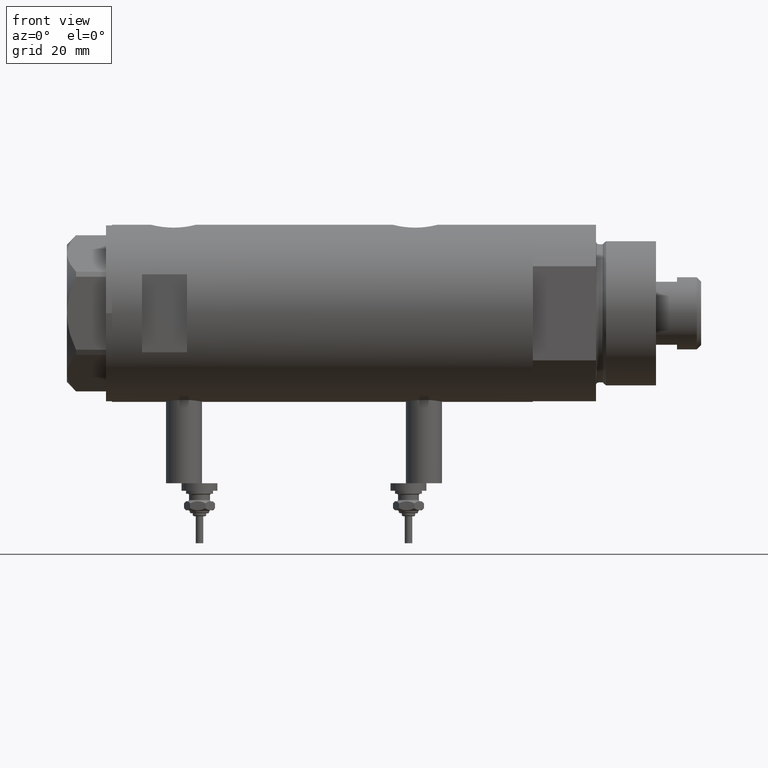
[diagram: clean part render]
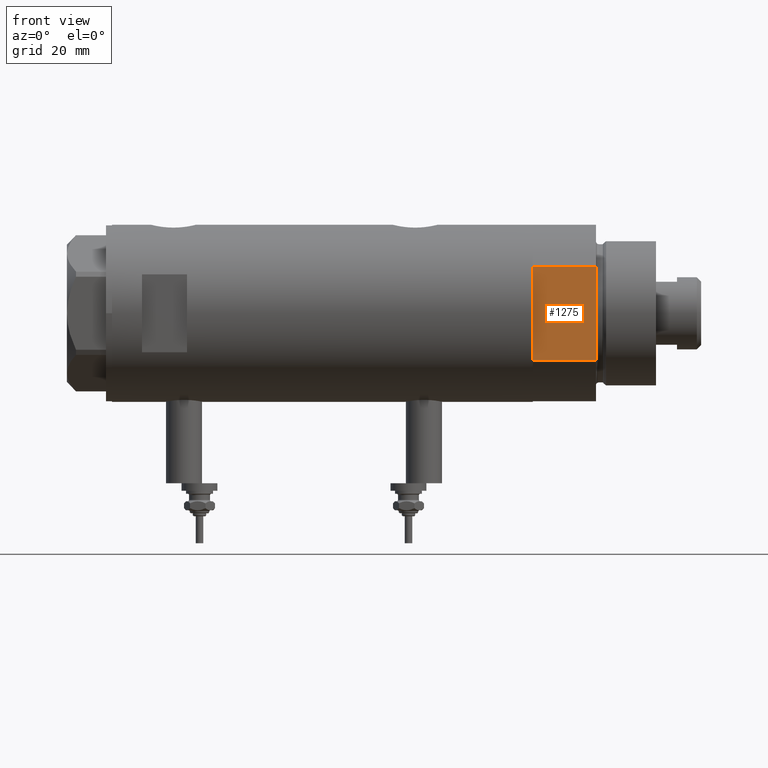
[diagram: same view with one face highlighted and labeled with its STEP entity id]
A machine part, front view. The second image highlights one B-rep face of the part: STEP entity #1275.
In plain terms, the highlighted planar face has unit normal (-0, 1, 0).
Its self-contained STEP definition (entity closure, byte-faithful):
#50 = ORIENTED_EDGE ( 'NONE', *, *, #5019, .F. ) ;
#114 = EDGE_CURVE ( 'NONE', #2147, #2326, #1627, .T. ) ;
#177 = EDGE_CURVE ( 'NONE', #2326, #1451, #5778, .T. ) ;
#266 = CARTESIAN_POINT ( 'NONE',  ( -15.66045976336583401, -25.00000000000000000, 0.000000000000000000 ) ) ;
#414 = VECTOR ( 'NONE', #4710, 1000.000000000000000 ) ;
#686 = ORIENTED_EDGE ( 'NONE', *, *, #689, .T. ) ;
#689 = EDGE_CURVE ( 'NONE', #3703, #2813, #1892, .T. ) ;
#770 = VECTOR ( 'NONE', #1471, 1000.000000000000000 ) ;
#849 = CARTESIAN_POINT ( 'NONE',  ( -15.66045976336583401, -25.00000000000000000, 21.00000000000000000 ) ) ;
#857 = VECTOR ( 'NONE', #1228, 1000.000000000000000 ) ;
#1077 = FACE_OUTER_BOUND ( 'NONE', #3263, .T. ) ;
#1108 = DIRECTION ( 'NONE',  ( -1.000000000000000000, -0.000000000000000000, -0.000000000000000000 ) ) ;
#1169 = CARTESIAN_POINT ( 'NONE',  ( 7.141428428542853091, -25.00000000000000000, 0.000000000000000000 ) ) ;
#1228 = DIRECTION ( 'NONE',  ( -1.000000000000000000, -0.000000000000000000, -0.000000000000000000 ) ) ;
#1275 = ADVANCED_FACE ( 'NONE', ( #1077 ), #1474, .F. ) ;
#1318 = VECTOR ( 'NONE', #1108, 1000.000000000000000 ) ;
#1331 = ORIENTED_EDGE ( 'NONE', *, *, #3384, .T. ) ;
#1440 = CARTESIAN_POINT ( 'NONE',  ( -15.66045976336583401, -25.00000000000000000, 0.000000000000000000 ) ) ;
#1445 = EDGE_CURVE ( 'NONE', #3703, #2147, #2792, .T. ) ;
#1451 = VERTEX_POINT ( 'NONE', #4276 ) ;
#1471 = DIRECTION ( 'NONE',  ( -0.000000000000000000, -0.000000000000000000, 1.000000000000000000 ) ) ;
#1474 = PLANE ( 'NONE',  #5088 ) ;
#1627 = LINE ( 'NONE', #4412, #857 ) ;
#1789 = ORIENTED_EDGE ( 'NONE', *, *, #177, .F. ) ;
#1892 = LINE ( 'NONE', #5855, #770 ) ;
#1942 = CARTESIAN_POINT ( 'NONE',  ( 15.66045976336583045, -25.00000000000000000, 21.00000000000000355 ) ) ;
#2147 = VERTEX_POINT ( 'NONE', #1169 ) ;
#2326 = VERTEX_POINT ( 'NONE', #5025 ) ;
#2453 = CARTESIAN_POINT ( 'NONE',  ( -15.66045976336583045, -24.99999999999999645, 20.99999999999999645 ) ) ;
#2610 = DIRECTION ( 'NONE',  ( -1.000000000000000000, -0.000000000000000000, -0.000000000000000000 ) ) ;
#2707 = ORIENTED_EDGE ( 'NONE', *, *, #114, .F. ) ;
#2792 = LINE ( 'NONE', #1440, #3154 ) ;
#2813 = VERTEX_POINT ( 'NONE', #1942 ) ;
#2849 = DIRECTION ( 'NONE',  ( -0.000000000000000000, 1.000000000000000000, 0.000000000000000000 ) ) ;
#2870 = LINE ( 'NONE', #3717, #414 ) ;
#3154 = VECTOR ( 'NONE', #5142, 1000.000000000000000 ) ;
#3263 = EDGE_LOOP ( 'NONE', ( #1331, #50, #1789, #2707, #5097, #686 ) ) ;
#3384 = EDGE_CURVE ( 'NONE', #2813, #3899, #4439, .T. ) ;
#3703 = VERTEX_POINT ( 'NONE', #4835 ) ;
#3717 = CARTESIAN_POINT ( 'NONE',  ( -15.66045976336583401, -25.00000000000000000, 0.000000000000000000 ) ) ;
#3899 = VERTEX_POINT ( 'NONE', #2453 ) ;
#4276 = CARTESIAN_POINT ( 'NONE',  ( -15.66045976336582690, -25.00000000000000000, 0.000000000000000000 ) ) ;
#4288 = CARTESIAN_POINT ( 'NONE',  ( -15.66045976336583401, -25.00000000000000000, 0.000000000000000000 ) ) ;
#4412 = CARTESIAN_POINT ( 'NONE',  ( -15.66045976336583401, -25.00000000000000000, 0.000000000000000000 ) ) ;
#4439 = LINE ( 'NONE', #849, #4703 ) ;
#4703 = VECTOR ( 'NONE', #2610, 1000.000000000000000 ) ;
#4710 = DIRECTION ( 'NONE',  ( -0.000000000000000000, -0.000000000000000000, 1.000000000000000000 ) ) ;
#4835 = CARTESIAN_POINT ( 'NONE',  ( 15.66045976336583401, -25.00000000000000000, 0.000000000000000000 ) ) ;
#5019 = EDGE_CURVE ( 'NONE', #1451, #3899, #2870, .T. ) ;
#5025 = CARTESIAN_POINT ( 'NONE',  ( -7.141428428542853091, -25.00000000000000000, 0.000000000000000000 ) ) ;
#5088 = AXIS2_PLACEMENT_3D ( 'NONE', #4288, #2849, #5604 ) ;
#5097 = ORIENTED_EDGE ( 'NONE', *, *, #1445, .F. ) ;
#5142 = DIRECTION ( 'NONE',  ( -1.000000000000000000, -0.000000000000000000, -0.000000000000000000 ) ) ;
#5604 = DIRECTION ( 'NONE',  ( 0.000000000000000000, -0.000000000000000000, 1.000000000000000000 ) ) ;
#5778 = LINE ( 'NONE', #266, #1318 ) ;
#5855 = CARTESIAN_POINT ( 'NONE',  ( 15.66045976336583401, -25.00000000000000000, 0.000000000000000000 ) ) ;